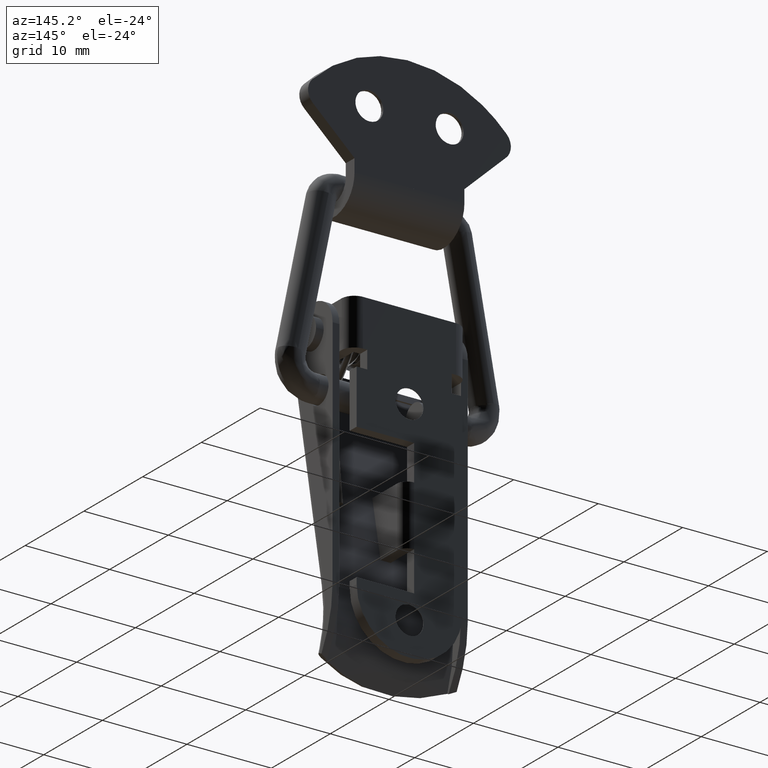
[diagram: clean part render]
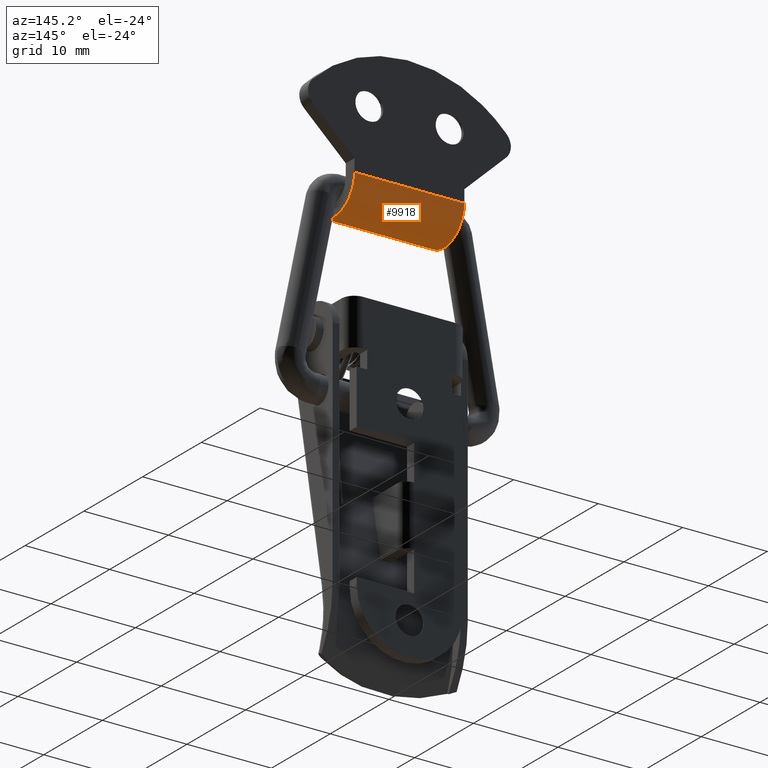
[diagram: same view with one face highlighted and labeled with its STEP entity id]
A machine part, auxiliary view. The second image highlights one B-rep face of the part: STEP entity #9918.
In plain terms, the highlighted face is a freeform B-spline surface patch.
Its self-contained STEP definition (entity closure, byte-faithful):
#9691=CARTESIAN_POINT('',(6.500000000000000,-3.241000000000101,-0.821999999999889));
#9692=VERTEX_POINT('',#9691);
#9698=CARTESIAN_POINT('',(6.500000000000000,3.499999999999885,0.499789852623892));
#9699=VERTEX_POINT('',#9698);
#9700=CARTESIAN_POINT('',(6.500000000000000,-3.241000000000101,-0.821999999999889));
#9701=CARTESIAN_POINT('',(6.499999999999992,-3.141479485678830,-1.066092275249615));
#9702=CARTESIAN_POINT('',(6.500000000000003,-2.862772524767113,-1.576014733529872));
#9703=CARTESIAN_POINT('',(6.499999999999999,-2.259927632237415,-2.226216169210412));
#9704=CARTESIAN_POINT('',(6.500000000000009,-1.562606924195287,-2.662866089181179));
#9705=CARTESIAN_POINT('',(6.499999999999976,-0.910269128913422,-2.896716437787001));
#9706=CARTESIAN_POINT('',(6.500000000000012,-0.290494419990972,-3.007968258393529));
#9707=CARTESIAN_POINT('',(6.499999999999996,0.289916363913859,-3.004853674943623));
#9708=CARTESIAN_POINT('',(6.499999999999971,0.897153185337218,-2.899287420263670));
#9709=CARTESIAN_POINT('',(6.500000000000185,1.564561635515302,-2.668219931947735));
#9710=CARTESIAN_POINT('',(6.499999999999587,2.215430119968810,-2.250814925010040));
#9711=CARTESIAN_POINT('',(6.500000000000218,2.776610039954545,-1.671180941781476));
#9712=CARTESIAN_POINT('',(6.499999999999902,3.141762352952310,-1.094965733404435));
#9713=CARTESIAN_POINT('',(6.500000000000088,3.425688393520185,-0.353716535824679));
#9714=CARTESIAN_POINT('',(6.499999999999846,3.500128129327563,0.173406421532906));
#9715=CARTESIAN_POINT('',(6.500000000000000,3.499999999999885,0.499789852623892));
#9716=B_SPLINE_CURVE_WITH_KNOTS('',3,(#9700,#9701,#9702,#9703,#9704,#9705,#9706,#9707,#9708,#9709,#9710,#9711,#9712,#9713,#9714,#9715),.UNSPECIFIED.,.F.,.U.,(4,1,1,1,1,1,1,1,1,1,1,1,1,4),(0.000000201463873,0.790807336166010,1.732262288544251,2.636074693248061,3.238607614472714,3.803504814603501,4.518981277948926,4.970833320003893,5.648696644957677,6.627829558463088,7.268026040216761,8.058860464457055,8.661386393894274,9.640488778434500),.UNSPECIFIED.);
#9717=EDGE_CURVE('',#9692,#9699,#9716,.T.);
#9719=CARTESIAN_POINT('',(6.500000000000000,3.499999999999885,0.500000000000000));
#9720=VERTEX_POINT('',#9719);
#9721=CARTESIAN_POINT('',(6.500000000000000,3.499999999999885,0.499789852623892));
#9722=CARTESIAN_POINT('',(6.500000000000000,3.499999999999885,0.500000000000000));
#9723=QUASI_UNIFORM_CURVE('',1,(#9721,#9722),.UNSPECIFIED.,.F.,.U.);
#9724=EDGE_CURVE('',#9699,#9720,#9723,.T.);
#9747=CARTESIAN_POINT('',(-6.500000000000000,-3.241000000000100,-0.821999999999889));
#9748=VERTEX_POINT('',#9747);
#9764=CARTESIAN_POINT('',(-6.500000000000000,3.499999999999885,0.500000000000000));
#9765=VERTEX_POINT('',#9764);
#9771=CARTESIAN_POINT('',(-6.500000000000000,3.499999999999885,0.499789852623892));
#9772=VERTEX_POINT('',#9771);
#9773=CARTESIAN_POINT('',(-6.500000000000000,3.499999999999885,0.500000000000000));
#9774=CARTESIAN_POINT('',(-6.500000000000000,3.499999999999885,0.499789852623892));
#9775=QUASI_UNIFORM_CURVE('',1,(#9773,#9774),.UNSPECIFIED.,.F.,.U.);
#9776=EDGE_CURVE('',#9765,#9772,#9775,.T.);
#9778=CARTESIAN_POINT('',(-6.500000000000000,3.499999999999885,0.499789852623892));
#9779=CARTESIAN_POINT('',(-6.500000000000011,3.500156608659197,0.148300272115510));
#9780=CARTESIAN_POINT('',(-6.499999999999967,3.398938044940524,-0.516889842739608));
#9781=CARTESIAN_POINT('',(-6.500000000000035,3.024718152558020,-1.320711153223957));
#9782=CARTESIAN_POINT('',(-6.499999999999955,2.590879301931132,-1.877580074691398));
#9783=CARTESIAN_POINT('',(-6.500000000000043,2.191993256048682,-2.243498934873639));
#9784=CARTESIAN_POINT('',(-6.499999999999920,1.663443966214289,-2.607122506986600));
#9785=CARTESIAN_POINT('',(-6.500000000000054,1.057696324532399,-2.865699148120546));
#9786=CARTESIAN_POINT('',(-6.499999999999902,0.414362665150664,-2.988115327195395));
#9787=CARTESIAN_POINT('',(-6.500000000000032,-0.188846105491159,-3.014130867609339));
#9788=CARTESIAN_POINT('',(-6.499999999999968,-0.777220297717382,-2.934497595435925));
#9789=CARTESIAN_POINT('',(-6.500000000000070,-1.398006117710351,-2.726800299080346));
#9790=CARTESIAN_POINT('',(-6.500000000000020,-1.920868733351241,-2.448211175221123));
#9791=CARTESIAN_POINT('',(-6.499999999999962,-2.386071764680845,-2.081811973802619));
#9792=CARTESIAN_POINT('',(-6.499999999999967,-2.862637595233044,-1.562345738066235));
#9793=CARTESIAN_POINT('',(-6.500000000000068,-3.117855180014840,-1.124258960357593));
#9794=CARTESIAN_POINT('',(-6.500000000000000,-3.241000000000100,-0.821999999999889));
#9795=B_SPLINE_CURVE_WITH_KNOTS('',3,(#9778,#9779,#9780,#9781,#9782,#9783,#9784,#9785,#9786,#9787,#9788,#9789,#9790,#9791,#9792,#9793,#9794),.UNSPECIFIED.,.F.,.U.,(4,1,1,1,1,1,1,1,1,1,1,1,1,1,4),(0.000000204347089,1.054417783710786,1.995875479898733,2.636074694573113,3.163297874838214,3.615207810368854,4.556678411859431,5.121500294326399,5.573394096749310,6.364218474654187,6.891440290272603,7.531637481756082,8.134169883503233,8.661386391658660,9.640488775653571),.UNSPECIFIED.);
#9796=EDGE_CURVE('',#9772,#9748,#9795,.T.);
#9878=CARTESIAN_POINT('',(6.500000000000000,-3.241000000000101,-0.821999999999889));
#9879=CARTESIAN_POINT('',(-6.500000000000000,-3.241000000000100,-0.821999999999889));
#9880=QUASI_UNIFORM_CURVE('',1,(#9878,#9879),.UNSPECIFIED.,.F.,.U.);
#9881=EDGE_CURVE('',#9692,#9748,#9880,.T.);
#9888=CARTESIAN_POINT('',(6.825000000000001,-3.278452791721291,-0.726164235496731));
#9889=CARTESIAN_POINT('',(-6.833125000000001,-3.278452791721290,-0.726164235496731));
#9890=CARTESIAN_POINT('',(6.825000000000000,-2.212747161746448,-3.576001790623538));
#9891=CARTESIAN_POINT('',(-6.833125000000001,-2.212747161746447,-3.576001790623538));
#9892=CARTESIAN_POINT('',(6.825000000000001,0.757673527430373,-2.917288264360781));
#9893=CARTESIAN_POINT('',(-6.833125000000001,0.757673527430374,-2.917288264360781));
#9894=CARTESIAN_POINT('',(6.825000000000000,3.728094216607194,-2.258574738098026));
#9895=CARTESIAN_POINT('',(-6.833125000000001,3.728094216607194,-2.258574738098026));
#9896=CARTESIAN_POINT('',(6.825000000000001,3.489193903569698,0.774613225217437));
#9897=CARTESIAN_POINT('',(-6.833125000000001,3.489193903569698,0.774613225217437));
#9905=(BOUNDED_SURFACE()B_SPLINE_SURFACE(1,2,((#9888,#9890,#9892,#9894,#9896),(#9889,#9891,#9893,#9895,#9897)),.UNSPECIFIED.,.F.,.F.,.U.)B_SPLINE_SURFACE_WITH_KNOTS((2,2),(3,2,3),(0.0,13.658125000000000),(0.0,5.234519675920759,10.469039351841520),.UNSPECIFIED.)GEOMETRIC_REPRESENTATION_ITEM()RATIONAL_B_SPLINE_SURFACE(((1.0,0.754709580222772,1.0,0.754709580222772,1.0),(1.0,0.754709580222772,1.0,0.754709580222772,1.0)))REPRESENTATION_ITEM('')SURFACE());
#9906=ORIENTED_EDGE('',*,*,#9776,.F.);
#9907=CARTESIAN_POINT('',(6.500000000000000,3.499999999999885,0.500000000000000));
#9908=CARTESIAN_POINT('',(-6.500000000000000,3.499999999999885,0.500000000000000));
#9909=QUASI_UNIFORM_CURVE('',1,(#9907,#9908),.UNSPECIFIED.,.F.,.U.);
#9910=EDGE_CURVE('',#9720,#9765,#9909,.T.);
#9911=ORIENTED_EDGE('',*,*,#9910,.F.);
#9912=ORIENTED_EDGE('',*,*,#9724,.F.);
#9913=ORIENTED_EDGE('',*,*,#9717,.F.);
#9914=ORIENTED_EDGE('',*,*,#9881,.T.);
#9915=ORIENTED_EDGE('',*,*,#9796,.F.);
#9916=EDGE_LOOP('',(#9906,#9911,#9912,#9913,#9914,#9915));
#9917=FACE_OUTER_BOUND('',#9916,.T.);
#9918=ADVANCED_FACE('',(#9917),#9905,.T.);